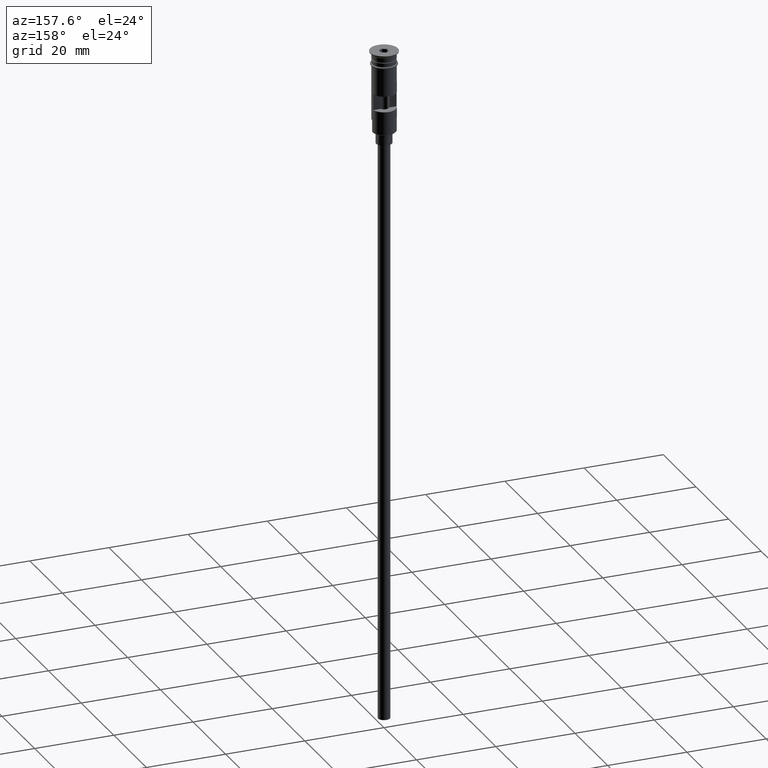
[diagram: clean part render]
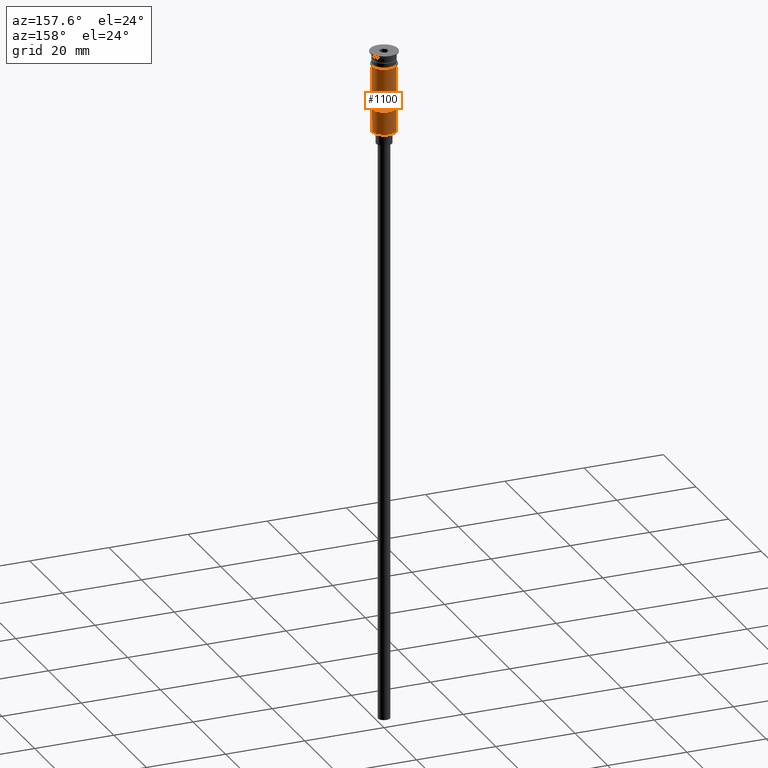
[diagram: same view with one face highlighted and labeled with its STEP entity id]
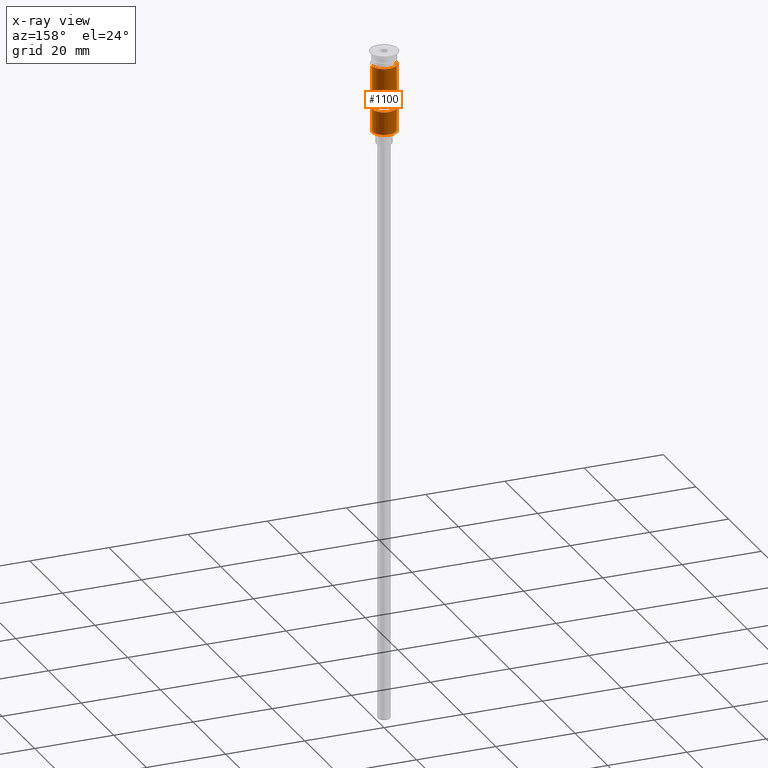
[diagram: x-ray of the same camera — body ghosted, the highlighted face saturated]
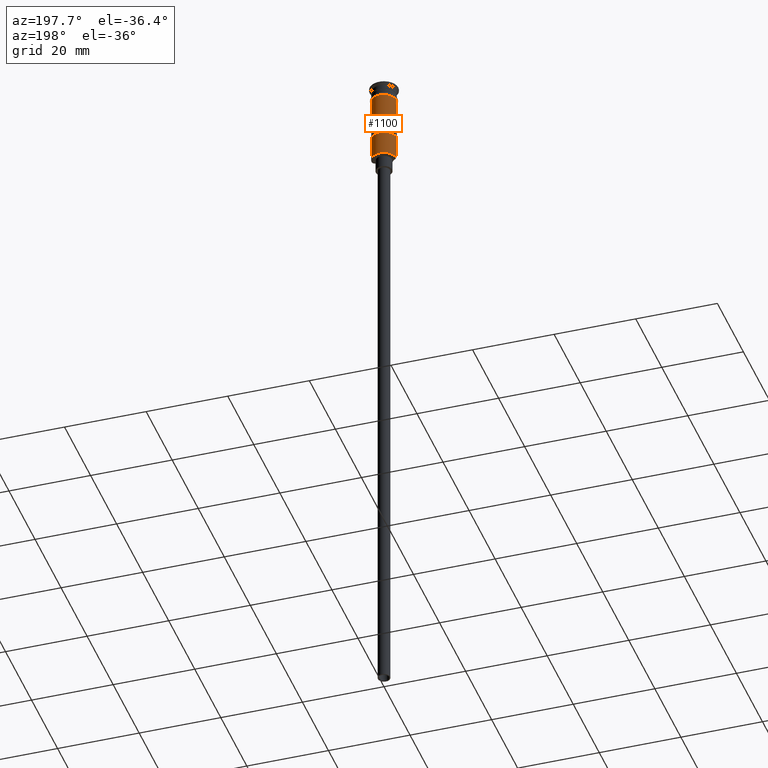
[diagram: same view with one face highlighted and labeled with its STEP entity id]
A machine part, auxiliary view. The second image highlights one B-rep face of the part: STEP entity #1100.
The next image is the same camera in x-ray: the body ghosted, the highlighted face saturated — about 0% of this face is hidden behind the body in this view.
A second angle (auxiliary view) of the same face is appended — the face is thin or edge-on in the first view.
In plain terms, the highlighted cylindrical surface (edge-blend (fillet) strip) has radius 3 mm, axis along (-0, -0, 1).
Its self-contained STEP definition (entity closure, byte-faithful):
#6 = ORIENTED_EDGE ( 'NONE', *, *, #607, .F. ) ;
#23 = AXIS2_PLACEMENT_3D ( 'NONE', #762, #994, #1268 ) ;
#29 = LINE ( 'NONE', #757, #1315 ) ;
#34 = ORIENTED_EDGE ( 'NONE', *, *, #896, .F. ) ;
#35 = CARTESIAN_POINT ( 'NONE',  ( 2.999999999999996891, 3.673940397442055924E-16, -17.30000000000000782 ) ) ;
#50 = DIRECTION ( 'NONE',  ( 0.000000000000000000, 0.000000000000000000, -1.000000000000000000 ) ) ;
#73 = VERTEX_POINT ( 'NONE', #1325 ) ;
#123 = DIRECTION ( 'NONE',  ( -0.000000000000000000, -0.000000000000000000, 1.000000000000000000 ) ) ;
#146 = DIRECTION ( 'NONE',  ( -0.000000000000000000, 0.000000000000000000, -1.000000000000000000 ) ) ;
#162 = VERTEX_POINT ( 'NONE', #1233 ) ;
#165 = LINE ( 'NONE', #396, #821 ) ;
#171 = AXIS2_PLACEMENT_3D ( 'NONE', #568, #1081, #976 ) ;
#172 = CIRCLE ( 'NONE', #171, 2.999999999999996891 ) ;
#175 = DIRECTION ( 'NONE',  ( -0.000000000000000000, -0.000000000000000000, 1.000000000000000000 ) ) ;
#187 = VERTEX_POINT ( 'NONE', #1214 ) ;
#192 = ORIENTED_EDGE ( 'NONE', *, *, #1277, .T. ) ;
#203 = ORIENTED_EDGE ( 'NONE', *, *, #1249, .T. ) ;
#211 = EDGE_CURVE ( 'NONE', #828, #463, #29, .T. ) ;
#245 = FACE_BOUND ( 'NONE', #1150, .T. ) ;
#253 = CIRCLE ( 'NONE', #903, 2.999999999999996891 ) ;
#276 = CARTESIAN_POINT ( 'NONE',  ( -2.999999999999995115, 0.000000000000000000, -20.50000000000000000 ) ) ;
#331 = EDGE_CURVE ( 'NONE', #162, #828, #678, .T. ) ;
#333 = VERTEX_POINT ( 'NONE', #35 ) ;
#340 = CARTESIAN_POINT ( 'NONE',  ( -2.999999999999995115, 0.000000000000000000, -17.30000000000000782 ) ) ;
#355 = AXIS2_PLACEMENT_3D ( 'NONE', #749, #997, #634 ) ;
#396 = CARTESIAN_POINT ( 'NONE',  ( 2.999999999999996891, 0.000000000000000000, 0.000000000000000000 ) ) ;
#401 = CYLINDRICAL_SURFACE ( 'NONE', #617, 2.999999999999996891 ) ;
#417 = VERTEX_POINT ( 'NONE', #435 ) ;
#435 = CARTESIAN_POINT ( 'NONE',  ( 2.999999999999995115, 3.673940397442053952E-16, -20.29999999999995808 ) ) ;
#451 = DIRECTION ( 'NONE',  ( -0.000000000000000000, -0.000000000000000000, 1.000000000000000000 ) ) ;
#463 = VERTEX_POINT ( 'NONE', #1601 ) ;
#470 = EDGE_CURVE ( 'NONE', #417, #187, #172, .T. ) ;
#481 = ORIENTED_EDGE ( 'NONE', *, *, #331, .F. ) ;
#485 = ORIENTED_EDGE ( 'NONE', *, *, #211, .F. ) ;
#542 = CARTESIAN_POINT ( 'NONE',  ( 2.939387691339810260, 0.5999999999999994227, 0.000000000000000000 ) ) ;
#554 = CARTESIAN_POINT ( 'NONE',  ( -2.999999999999996891, 3.673940397442055924E-16, 0.000000000000000000 ) ) ;
#568 = CARTESIAN_POINT ( 'NONE',  ( 0.000000000000000000, 0.000000000000000000, -20.29999999999995808 ) ) ;
#607 = EDGE_CURVE ( 'NONE', #417, #333, #838, .T. ) ;
#617 = AXIS2_PLACEMENT_3D ( 'NONE', #1280, #1504, #892 ) ;
#634 = DIRECTION ( 'NONE',  ( 1.000000000000000000, 0.000000000000000000, 0.000000000000000000 ) ) ;
#678 = CIRCLE ( 'NONE', #23, 2.999999999999996891 ) ;
#691 = VERTEX_POINT ( 'NONE', #871 ) ;
#733 = DIRECTION ( 'NONE',  ( 1.000000000000000000, 0.000000000000000000, 0.000000000000000000 ) ) ;
#749 = CARTESIAN_POINT ( 'NONE',  ( 0.000000000000000000, 0.000000000000000000, -3.499999999999998668 ) ) ;
#757 = CARTESIAN_POINT ( 'NONE',  ( -2.939387691339810260, 0.5999999999999994227, 0.000000000000000000 ) ) ;
#762 = CARTESIAN_POINT ( 'NONE',  ( 0.000000000000000000, 0.000000000000000000, -14.50000000000000000 ) ) ;
#796 = EDGE_CURVE ( 'NONE', #463, #73, #253, .T. ) ;
#802 = EDGE_CURVE ( 'NONE', #691, #1568, #1414, .T. ) ;
#821 = VECTOR ( 'NONE', #175, 1000.000000000000000 ) ;
#828 = VERTEX_POINT ( 'NONE', #1111 ) ;
#837 = ORIENTED_EDGE ( 'NONE', *, *, #796, .F. ) ;
#838 = LINE ( 'NONE', #1593, #1367 ) ;
#845 = EDGE_CURVE ( 'NONE', #73, #162, #1484, .T. ) ;
#853 = LINE ( 'NONE', #276, #1219 ) ;
#871 = CARTESIAN_POINT ( 'NONE',  ( 2.999999999999998668, 0.000000000000000000, -3.499999999999998668 ) ) ;
#892 = DIRECTION ( 'NONE',  ( 1.000000000000000000, 0.000000000000000000, 0.000000000000000000 ) ) ;
#896 = EDGE_CURVE ( 'NONE', #333, #691, #165, .T. ) ;
#903 = AXIS2_PLACEMENT_3D ( 'NONE', #1605, #146, #733 ) ;
#976 = DIRECTION ( 'NONE',  ( -1.000000000000000000, 0.000000000000000000, 0.000000000000000000 ) ) ;
#994 = DIRECTION ( 'NONE',  ( 0.000000000000000000, 0.000000000000000000, 1.000000000000000000 ) ) ;
#997 = DIRECTION ( 'NONE',  ( -0.000000000000000000, -0.000000000000000000, 1.000000000000000000 ) ) ;
#1050 = DIRECTION ( 'NONE',  ( -0.000000000000000000, -0.000000000000000000, 1.000000000000000000 ) ) ;
#1066 = VERTEX_POINT ( 'NONE', #340 ) ;
#1081 = DIRECTION ( 'NONE',  ( 0.000000000000000000, 0.000000000000000000, 1.000000000000000000 ) ) ;
#1095 = DIRECTION ( 'NONE',  ( -0.000000000000000000, -0.000000000000000000, 1.000000000000000000 ) ) ;
#1100 = ADVANCED_FACE ( 'NONE', ( #245, #1166 ), #401, .T. ) ;
#1101 = ORIENTED_EDGE ( 'NONE', *, *, #845, .F. ) ;
#1111 = CARTESIAN_POINT ( 'NONE',  ( -2.939387691339810260, 0.5999999999999994227, -14.50000000000000000 ) ) ;
#1150 = EDGE_LOOP ( 'NONE', ( #1101, #837, #485, #481 ) ) ;
#1166 = FACE_OUTER_BOUND ( 'NONE', #1543, .T. ) ;
#1196 = CARTESIAN_POINT ( 'NONE',  ( -2.999999999999999112, 3.673940397442058389E-16, -3.499999999999998668 ) ) ;
#1214 = CARTESIAN_POINT ( 'NONE',  ( -2.999999999999995115, 0.000000000000000000, -20.29999999999995808 ) ) ;
#1219 = VECTOR ( 'NONE', #1095, 1000.000000000000000 ) ;
#1233 = CARTESIAN_POINT ( 'NONE',  ( 2.939387691339810260, 0.5999999999999994227, -14.50000000000000000 ) ) ;
#1244 = VECTOR ( 'NONE', #50, 1000.000000000000000 ) ;
#1249 = EDGE_CURVE ( 'NONE', #1066, #1568, #1302, .T. ) ;
#1268 = DIRECTION ( 'NONE',  ( -1.000000000000000000, 0.000000000000000000, 0.000000000000000000 ) ) ;
#1277 = EDGE_CURVE ( 'NONE', #187, #1066, #853, .T. ) ;
#1280 = CARTESIAN_POINT ( 'NONE',  ( 0.000000000000000000, 0.000000000000000000, 0.000000000000000000 ) ) ;
#1302 = LINE ( 'NONE', #554, #1468 ) ;
#1315 = VECTOR ( 'NONE', #123, 1000.000000000000000 ) ;
#1321 = ORIENTED_EDGE ( 'NONE', *, *, #470, .T. ) ;
#1325 = CARTESIAN_POINT ( 'NONE',  ( 2.939387691339810260, 0.5999999999999994227, -10.50000000000000000 ) ) ;
#1367 = VECTOR ( 'NONE', #451, 1000.000000000000000 ) ;
#1414 = CIRCLE ( 'NONE', #355, 2.999999999999998668 ) ;
#1456 = ORIENTED_EDGE ( 'NONE', *, *, #802, .F. ) ;
#1468 = VECTOR ( 'NONE', #1050, 1000.000000000000000 ) ;
#1484 = LINE ( 'NONE', #542, #1244 ) ;
#1504 = DIRECTION ( 'NONE',  ( -0.000000000000000000, -0.000000000000000000, 1.000000000000000000 ) ) ;
#1543 = EDGE_LOOP ( 'NONE', ( #192, #203, #1456, #34, #6, #1321 ) ) ;
#1568 = VERTEX_POINT ( 'NONE', #1196 ) ;
#1593 = CARTESIAN_POINT ( 'NONE',  ( 2.999999999999995115, 3.673940397442053952E-16, -20.50000000000000000 ) ) ;
#1601 = CARTESIAN_POINT ( 'NONE',  ( -2.939387691339810260, 0.5999999999999994227, -10.50000000000000000 ) ) ;
#1605 = CARTESIAN_POINT ( 'NONE',  ( 0.000000000000000000, 0.000000000000000000, -10.50000000000000000 ) ) ;